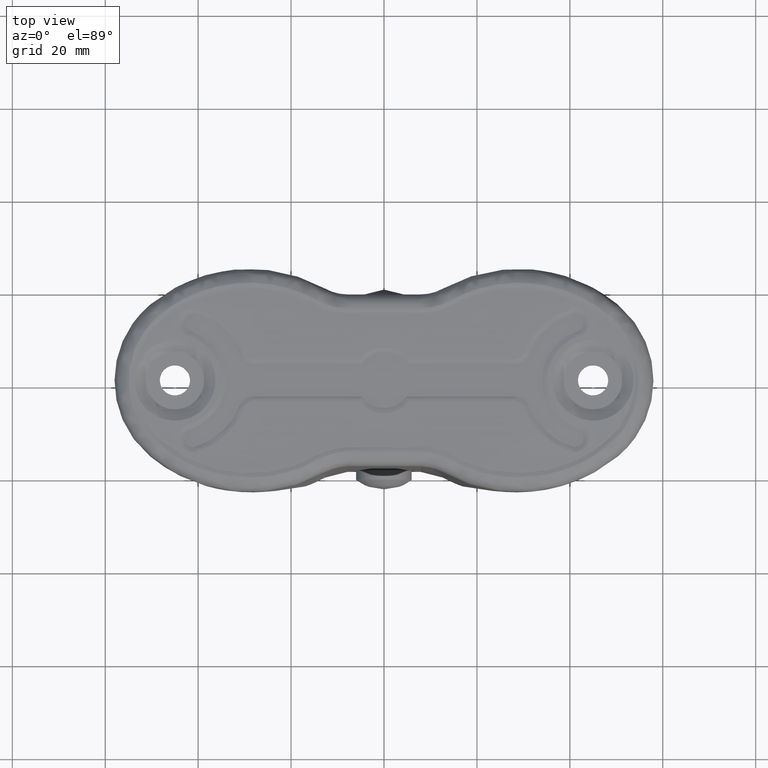
[diagram: clean part render]
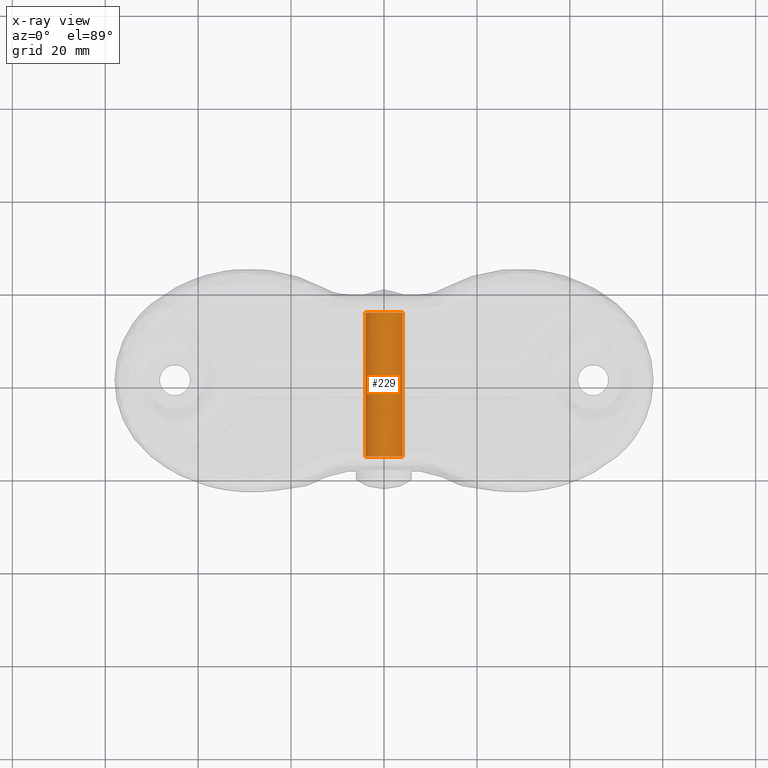
[diagram: x-ray — body ghosted, one internal face saturated and labeled with its STEP entity id]
A machine part, top view, then the same camera in x-ray: the body is ghosted and one INTERNAL B-rep face — a face not visible from any outside direction — is saturated and labeled: STEP entity #229.
In plain terms, the highlighted face is a freeform B-spline surface patch.
Its self-contained STEP definition (entity closure, byte-faithful):
#62=CARTESIAN_POINT('',(-3.969064855255264,15.500000000000000,-57.996512008694147));
#63=VERTEX_POINT('',#62);
#79=CARTESIAN_POINT('',(-3.969064855278891,-15.500000000000000,-57.996512008505292));
#80=VERTEX_POINT('',#79);
#81=CARTESIAN_POINT('',(-3.969064855255264,15.500000000000000,-57.996512008694147));
#82=CARTESIAN_POINT('',(-3.969064855278891,-15.500000000000000,-57.996512008505292));
#83=QUASI_UNIFORM_CURVE('',1,(#81,#82),.UNSPECIFIED.,.F.,.U.);
#84=EDGE_CURVE('',#63,#80,#83,.T.);
#101=CARTESIAN_POINT('',(3.999847692251507,-15.500000000000000,-57.465093857413180));
#102=VERTEX_POINT('',#101);
#118=CARTESIAN_POINT('',(3.999847692251106,15.500000000000000,-57.465093857367222));
#119=VERTEX_POINT('',#118);
#120=CARTESIAN_POINT('',(3.999847692251106,15.500000000000000,-57.465093857367222));
#121=CARTESIAN_POINT('',(3.999847692251507,-15.500000000000000,-57.465093857413180));
#122=QUASI_UNIFORM_CURVE('',1,(#120,#121),.UNSPECIFIED.,.F.,.U.);
#123=EDGE_CURVE('',#119,#102,#122,.T.);
#143=CARTESIAN_POINT('',(3.999847692256684,16.274999999999999,-57.465093858006497));
#144=CARTESIAN_POINT('',(3.964941550263188,16.274999999999999,-53.465246165749818));
#145=CARTESIAN_POINT('',(-0.034906141993496,16.274999999999999,-53.500152307743313));
#146=CARTESIAN_POINT('',(-4.034753834250179,16.274999999999999,-53.535058449736809));
#147=CARTESIAN_POINT('',(-3.999847692256684,16.274999999999999,-57.534906141993503));
#148=CARTESIAN_POINT('',(-3.997825725041103,16.275000000000002,-57.766600635832695));
#149=CARTESIAN_POINT('',(-3.969064855302155,16.275000000000002,-57.996512008319321));
#150=CARTESIAN_POINT('',(3.999847692256684,-16.294374999999999,-57.465093858006497));
#151=CARTESIAN_POINT('',(3.964941550263188,-16.294374999999999,-53.465246165749818));
#152=CARTESIAN_POINT('',(-0.034906141993496,-16.294374999999999,-53.500152307743313));
#153=CARTESIAN_POINT('',(-4.034753834250179,-16.294374999999999,-53.535058449736809));
#154=CARTESIAN_POINT('',(-3.999847692256684,-16.294374999999999,-57.534906141993503));
#155=CARTESIAN_POINT('',(-3.997825725041103,-16.294374999999995,-57.766600635832695));
#156=CARTESIAN_POINT('',(-3.969064855302155,-16.294374999999999,-57.996512008319321));
#164=(BOUNDED_SURFACE()B_SPLINE_SURFACE(2,1,((#143,#150),(#144,#151),(#145,#152),(#146,#153),(#147,#154),(#148,#155),(#149,#156)),.UNSPECIFIED.,.F.,.F.,.U.)B_SPLINE_SURFACE_WITH_KNOTS((3,2,2,3),(2,2),(0.0,6.627416997969533,13.254833995939070,13.785027355776631),(0.0,32.569375000000001),.UNSPECIFIED.)GEOMETRIC_REPRESENTATION_ITEM()RATIONAL_B_SPLINE_SURFACE(((1.0,1.0),(0.707106781186548,0.707106781186548),(1.0,1.0),(0.707106781186548,0.707106781186548),(1.0,1.0),(0.976568542494924,0.976568542494924),(0.956886118190660,0.956886118190660)))REPRESENTATION_ITEM('')SURFACE());
#165=CARTESIAN_POINT('',(0.0,15.500000000000000,-53.500000000000007));
#166=VERTEX_POINT('',#165);
#167=CARTESIAN_POINT('',(0.0,15.500000000000000,-53.500000000000007));
#168=CARTESIAN_POINT('',(-4.000000000000000,15.500000000000004,-53.500000000000007));
#169=CARTESIAN_POINT('',(-4.0,15.500000000000000,-57.500000000000000));
#170=CARTESIAN_POINT('',(-4.0,15.499999999999998,-57.749219710513209));
#171=CARTESIAN_POINT('',(-3.969064855255264,15.499999999999998,-57.996512008694154));
#179=(BOUNDED_CURVE()B_SPLINE_CURVE(2,(#167,#168,#169,#170,#171),.UNSPECIFIED.,.F.,.U.)B_SPLINE_CURVE_WITH_KNOTS((3,2,3),(0.500000000000000,0.750000000000000,0.771473929002555),.UNSPECIFIED.)CURVE()GEOMETRIC_REPRESENTATION_ITEM()RATIONAL_B_SPLINE_CURVE((1.0,0.707106781186548,1.0,0.974841727255481,0.954005430212903))REPRESENTATION_ITEM(''));
#180=EDGE_CURVE('',#166,#63,#179,.T.);
#181=ORIENTED_EDGE('',*,*,#180,.F.);
#182=CARTESIAN_POINT('',(3.999847692251106,15.500000000000002,-57.465093857367215));
#183=CARTESIAN_POINT('',(3.965244841112349,15.500000000000005,-53.500000000000000));
#184=CARTESIAN_POINT('',(0.0,15.500000000000000,-53.500000000000007));
#192=(BOUNDED_CURVE()B_SPLINE_CURVE(2,(#182,#183,#184),.UNSPECIFIED.,.F.,.U.)B_SPLINE_CURVE_WITH_KNOTS((3,3),(0.251539894391292,0.500000000000000),.UNSPECIFIED.)CURVE()GEOMETRIC_REPRESENTATION_ITEM()RATIONAL_B_SPLINE_CURVE((0.996414027970100,0.708910879686141,1.0))REPRESENTATION_ITEM(''));
#193=EDGE_CURVE('',#119,#166,#192,.T.);
#194=ORIENTED_EDGE('',*,*,#193,.F.);
#195=ORIENTED_EDGE('',*,*,#123,.T.);
#196=CARTESIAN_POINT('',(0.0,-15.500000000000000,-53.500000000000007));
#197=VERTEX_POINT('',#196);
#198=CARTESIAN_POINT('',(0.0,-15.500000000000000,-53.500000000000007));
#199=CARTESIAN_POINT('',(3.965244841203464,-15.500000000000002,-53.500000000000007));
#200=CARTESIAN_POINT('',(3.999847692251507,-15.499999999999996,-57.465093857413180));
#208=(BOUNDED_CURVE()B_SPLINE_CURVE(2,(#198,#199,#200),.UNSPECIFIED.,.F.,.U.)B_SPLINE_CURVE_WITH_KNOTS((3,3),(0.0,0.248460105612755),.UNSPECIFIED.)CURVE()GEOMETRIC_REPRESENTATION_ITEM()RATIONAL_B_SPLINE_CURVE((1.0,0.708910879681399,0.996414027979467))REPRESENTATION_ITEM(''));
#209=EDGE_CURVE('',#197,#102,#208,.T.);
#210=ORIENTED_EDGE('',*,*,#209,.F.);
#211=CARTESIAN_POINT('',(-3.969064855278891,-15.500000000000004,-57.996512008505292));
#212=CARTESIAN_POINT('',(-4.000000000000000,-15.499999999999996,-57.749219710322130));
#213=CARTESIAN_POINT('',(-4.0,-15.500000000000000,-57.500000000000000));
#214=CARTESIAN_POINT('',(-4.000000000000000,-15.500000000000004,-53.500000000000007));
#215=CARTESIAN_POINT('',(0.0,-15.500000000000000,-53.500000000000007));
#223=(BOUNDED_CURVE()B_SPLINE_CURVE(2,(#211,#212,#213,#214,#215),.UNSPECIFIED.,.F.,.U.)B_SPLINE_CURVE_WITH_KNOTS((3,2,3),(0.728526071013495,0.750000000000000,1.0),.UNSPECIFIED.)CURVE()GEOMETRIC_REPRESENTATION_ITEM()RATIONAL_B_SPLINE_CURVE((0.954005430244049,0.974841727274284,1.0,0.707106781186548,1.0))REPRESENTATION_ITEM(''));
#224=EDGE_CURVE('',#80,#197,#223,.T.);
#225=ORIENTED_EDGE('',*,*,#224,.F.);
#226=ORIENTED_EDGE('',*,*,#84,.F.);
#227=EDGE_LOOP('',(#181,#194,#195,#210,#225,#226));
#228=FACE_OUTER_BOUND('',#227,.T.);
#229=ADVANCED_FACE('',(#228),#164,.F.);